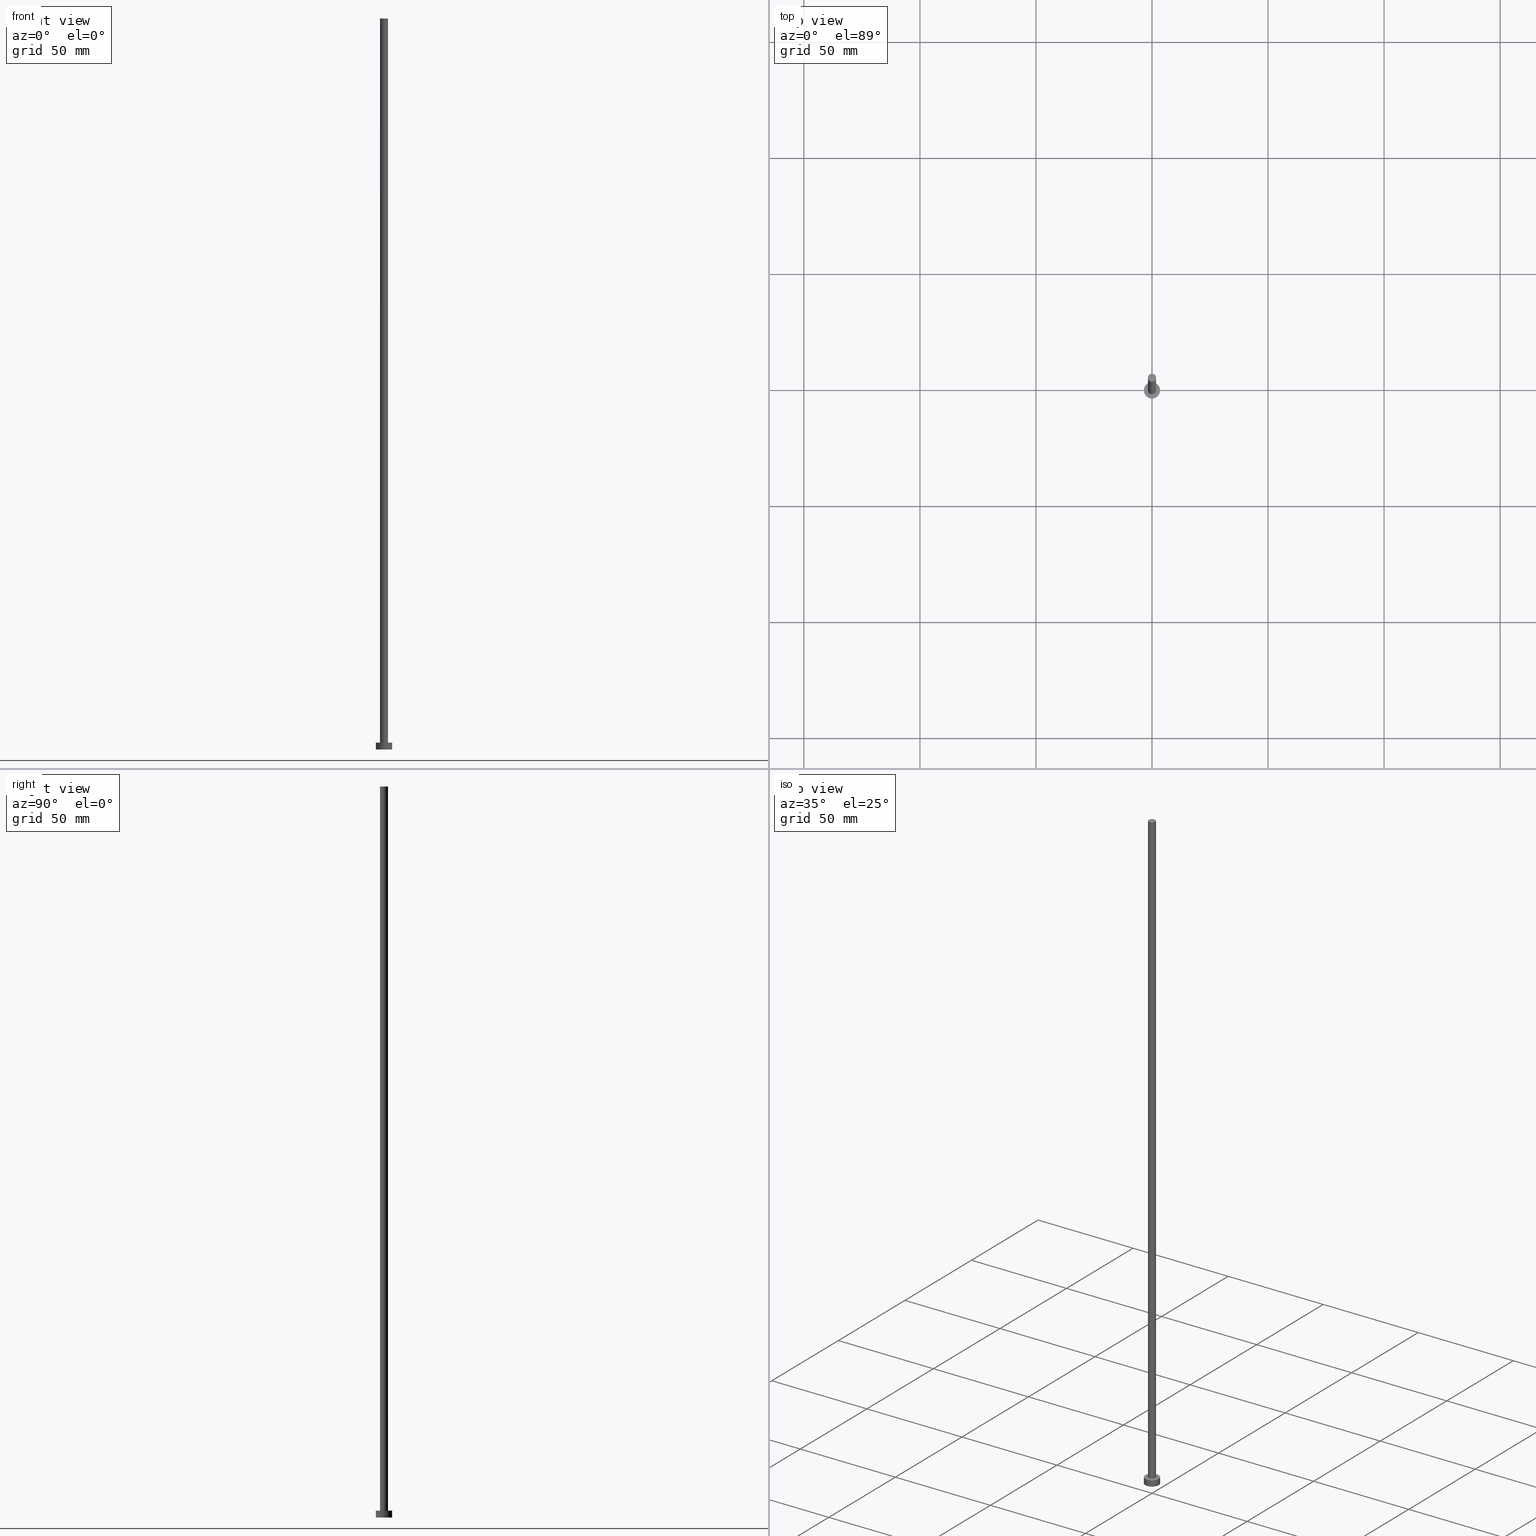
[diagram: canonical four-view strip — front | top / right | iso, engineering-drawing reading convention]
A machine part, canonical four-view strip (front | top / right | iso — engineering-drawing reading convention). The complete STEP part file that produces these views, byte-faithful:
ISO-10303-21;
HEADER;
FILE_DESCRIPTION (( 'STEP AP203' ),
    '1' );
FILE_NAME ('29cc.STEP',
    '2023-02-12T12:42:04',
    ( '' ),
    ( '' ),
    'SwSTEP 2.0',
    'SolidWorks 2019',
    '' );
FILE_SCHEMA (( 'CONFIG_CONTROL_DESIGN' ));
ENDSEC;

DATA;
#1 = ORIENTED_EDGE ( 'NONE', *, *, #112, .F. ) ;
#2 = AXIS2_PLACEMENT_3D ( 'NONE', #130, #226, #88 ) ;
#3 = AXIS2_PLACEMENT_3D ( 'NONE', #16, #223, #99 ) ;
#4 = EDGE_CURVE ( 'NONE', #36, #141, #86, .T. ) ;
#5 = PLANE ( 'NONE',  #2 ) ;
#6 = ADVANCED_FACE ( 'NONE', ( #144 ), #5, .T. ) ;
#7 = ORIENTED_EDGE ( 'NONE', *, *, #255, .T. ) ;
#8 = CARTESIAN_POINT ( 'NONE',  ( 0.000000000000000000, 0.000000000000000000, 3.000000000000000000 ) ) ;
#9 = AXIS2_PLACEMENT_3D ( 'NONE', #31, #217, #235 ) ;
#10 = DIRECTION ( 'NONE',  ( 0.000000000000000000, 0.000000000000000000, 1.000000000000000000 ) ) ;
#11 = APPROVAL_ROLE ( '' ) ;
#12 = COORDINATED_UNIVERSAL_TIME_OFFSET ( 1, 0, .AHEAD. ) ;
#13 = CARTESIAN_POINT ( 'NONE',  ( 3.500000000000000444, 4.286263797015737088E-16, 3.000000000000000000 ) ) ;
#14 = EDGE_CURVE ( 'NONE', #28, #188, #156, .T. ) ;
#15 = PRODUCT_DEFINITION_FORMATION_WITH_SPECIFIED_SOURCE ( 'LIBOVOLN�', '', #187, .NOT_KNOWN. ) ;
#16 = CARTESIAN_POINT ( 'NONE',  ( 0.000000000000000000, 0.000000000000000000, 315.0000000000000000 ) ) ;
#17 = EDGE_LOOP ( 'NONE', ( #195, #51 ) ) ;
#18 = CC_DESIGN_PERSON_AND_ORGANIZATION_ASSIGNMENT ( #172, #162, ( #15 ) ) ;
#19 = CARTESIAN_POINT ( 'NONE',  ( -1.750000000000000000, 0.000000000000000000, 315.0000000000000000 ) ) ;
#20 = CARTESIAN_POINT ( 'NONE',  ( -1.750000000000000000, 0.000000000000000000, 3.000000000000000000 ) ) ;
#21 = ADVANCED_FACE ( 'NONE', ( #236 ), #118, .T. ) ;
#22 = CIRCLE ( 'NONE', #177, 3.500000000000000444 ) ;
#23 = ORIENTED_EDGE ( 'NONE', *, *, #221, .T. ) ;
#24 = FACE_OUTER_BOUND ( 'NONE', #250, .T. ) ;
#25 = APPROVAL ( #191, 'NEUR�EN�' ) ;
#26 = EDGE_LOOP ( 'NONE', ( #201, #46, #61, #153 ) ) ;
#27 = ADVANCED_FACE ( 'NONE', ( #167 ), #186, .T. ) ;
#28 = VERTEX_POINT ( 'NONE', #242 ) ;
#29 = APPLICATION_CONTEXT ( 'configuration controlled 3d designs of mechanical parts and assemblies' ) ;
#30 = VERTEX_POINT ( 'NONE', #243 ) ;
#31 = CARTESIAN_POINT ( 'NONE',  ( 0.000000000000000000, 0.000000000000000000, 0.000000000000000000 ) ) ;
#32 = DIRECTION ( 'NONE',  ( 0.000000000000000000, 0.000000000000000000, 1.000000000000000000 ) ) ;
#33 = DIRECTION ( 'NONE',  ( 0.000000000000000000, 0.000000000000000000, 1.000000000000000000 ) ) ;
#34 = MECHANICAL_CONTEXT ( 'NONE', #29, 'mechanical' ) ;
#35 = ORIENTED_EDGE ( 'NONE', *, *, #255, .F. ) ;
#36 = VERTEX_POINT ( 'NONE', #20 ) ;
#37 = ORIENTED_EDGE ( 'NONE', *, *, #176, .T. ) ;
#38 = CC_DESIGN_DATE_AND_TIME_ASSIGNMENT ( #142, #41, ( #122 ) ) ;
#39 = FACE_BOUND ( 'NONE', #205, .T. ) ;
#40 = CIRCLE ( 'NONE', #129, 3.500000000000000444 ) ;
#41 = DATE_TIME_ROLE ( 'creation_date' ) ;
#42 = CARTESIAN_POINT ( 'NONE',  ( 0.000000000000000000, 0.000000000000000000, 0.000000000000000000 ) ) ;
#43 = DIRECTION ( 'NONE',  ( -1.000000000000000000, 0.000000000000000000, 0.000000000000000000 ) ) ;
#44 = ORIENTED_EDGE ( 'NONE', *, *, #182, .F. ) ;
#45 = AXIS2_PLACEMENT_3D ( 'NONE', #171, #247, #43 ) ;
#46 = ORIENTED_EDGE ( 'NONE', *, *, #176, .F. ) ;
#47 = DIRECTION ( 'NONE',  ( -0.000000000000000000, -0.000000000000000000, -1.000000000000000000 ) ) ;
#48 = LOCAL_TIME ( 13, 42, 4.000000000000000000, #12 ) ;
#49 = ORIENTED_EDGE ( 'NONE', *, *, #59, .T. ) ;
#50 = DIRECTION ( 'NONE',  ( 0.000000000000000000, 0.000000000000000000, 1.000000000000000000 ) ) ;
#51 = ORIENTED_EDGE ( 'NONE', *, *, #112, .T. ) ;
#52 = FACE_OUTER_BOUND ( 'NONE', #228, .T. ) ;
#53 = APPROVAL_ROLE ( '' ) ;
#54 = ORIENTED_EDGE ( 'NONE', *, *, #4, .T. ) ;
#55 = DIRECTION ( 'NONE',  ( 1.000000000000000000, 0.000000000000000000, 0.000000000000000000 ) ) ;
#56 = CALENDAR_DATE ( 2023, 12, 2 ) ;
#57 = CARTESIAN_POINT ( 'NONE',  ( 0.000000000000000000, 0.000000000000000000, 0.000000000000000000 ) ) ;
#58 = PLANE ( 'NONE',  #175 ) ;
#59 = EDGE_CURVE ( 'NONE', #30, #188, #22, .T. ) ;
#60 = CC_DESIGN_APPROVAL ( #25, ( #122 ) ) ;
#61 = ORIENTED_EDGE ( 'NONE', *, *, #14, .T. ) ;
#62 = EDGE_LOOP ( 'NONE', ( #173, #233, #170, #54 ) ) ;
#63 = VECTOR ( 'NONE', #200, 1000.000000000000000 ) ;
#64 = ADVANCED_FACE ( 'NONE', ( #227 ), #212, .F. ) ;
#65 = PERSON_AND_ORGANIZATION ( #127, #193 ) ;
#66 = ORIENTED_EDGE ( 'NONE', *, *, #105, .T. ) ;
#67 = DIRECTION ( 'NONE',  ( -1.000000000000000000, 0.000000000000000000, 0.000000000000000000 ) ) ;
#68 = APPROVAL ( #152, 'NEUR�EN�' ) ;
#69 = CC_DESIGN_PERSON_AND_ORGANIZATION_ASSIGNMENT ( #80, #116, ( #187 ) ) ;
#70 = APPROVAL_DATE_TIME ( #249, #163 ) ;
#71 = DIRECTION ( 'NONE',  ( 1.000000000000000000, 0.000000000000000000, 0.000000000000000000 ) ) ;
#72 = CIRCLE ( 'NONE', #220, 3.500000000000000444 ) ;
#73 = DIRECTION ( 'NONE',  ( 1.000000000000000000, 0.000000000000000000, 0.000000000000000000 ) ) ;
#74 = DIRECTION ( 'NONE',  ( 1.000000000000000000, 0.000000000000000000, 0.000000000000000000 ) ) ;
#75 = CARTESIAN_POINT ( 'NONE',  ( 0.000000000000000000, 0.000000000000000000, 0.000000000000000000 ) ) ;
#76 =( NAMED_UNIT ( * ) PLANE_ANGLE_UNIT ( ) SI_UNIT ( $, .RADIAN. ) );
#77 = VECTOR ( 'NONE', #135, 1000.000000000000000 ) ;
#78 = DATE_AND_TIME ( #151, #98 ) ;
#79 = AXIS2_PLACEMENT_3D ( 'NONE', #133, #198, #55 ) ;
#80 = PERSON_AND_ORGANIZATION ( #127, #193 ) ;
#81 =( GEOMETRIC_REPRESENTATION_CONTEXT ( 3 ) GLOBAL_UNCERTAINTY_ASSIGNED_CONTEXT ( ( #117 ) ) GLOBAL_UNIT_ASSIGNED_CONTEXT ( ( #252, #76, #157 ) ) REPRESENTATION_CONTEXT ( 'NONE', 'WORKASPACE' ) );
#82 = EDGE_CURVE ( 'NONE', #207, #141, #137, .T. ) ;
#83 = CC_DESIGN_SECURITY_CLASSIFICATION ( #165, ( #15 ) ) ;
#84 = EDGE_CURVE ( 'NONE', #238, #207, #190, .T. ) ;
#85 = SECURITY_CLASSIFICATION_LEVEL ( 'unclassified' ) ;
#86 = CIRCLE ( 'NONE', #120, 1.750000000000000000 ) ;
#87 = AXIS2_PLACEMENT_3D ( 'NONE', #57, #251, #211 ) ;
#88 = DIRECTION ( 'NONE',  ( 1.000000000000000000, 0.000000000000000000, -0.000000000000000000 ) ) ;
#89 = DIRECTION ( 'NONE',  ( -0.000000000000000000, -0.000000000000000000, -1.000000000000000000 ) ) ;
#90 = DIRECTION ( 'NONE',  ( -0.000000000000000000, -0.000000000000000000, -1.000000000000000000 ) ) ;
#91 = CC_DESIGN_PERSON_AND_ORGANIZATION_ASSIGNMENT ( #65, #119, ( #122 ) ) ;
#92 = PERSON_AND_ORGANIZATION ( #127, #193 ) ;
#93 = EDGE_LOOP ( 'NONE', ( #37, #7 ) ) ;
#94 = APPROVAL_DATE_TIME ( #78, #25 ) ;
#95 = PERSON_AND_ORGANIZATION_ROLE ( 'classification_officer' ) ;
#96 = DATE_TIME_ROLE ( 'classification_date' ) ;
#97 = COORDINATED_UNIVERSAL_TIME_OFFSET ( 1, 0, .AHEAD. ) ;
#98 = LOCAL_TIME ( 13, 42, 4.000000000000000000, #97 ) ;
#99 = DIRECTION ( 'NONE',  ( 1.000000000000000000, 0.000000000000000000, 0.000000000000000000 ) ) ;
#100 = CC_DESIGN_PERSON_AND_ORGANIZATION_ASSIGNMENT ( #92, #95, ( #165 ) ) ;
#101 = LINE ( 'NONE', #219, #63 ) ;
#102 = APPLICATION_CONTEXT ( 'configuration controlled 3d designs of mechanical parts and assemblies' ) ;
#103 = CYLINDRICAL_SURFACE ( 'NONE', #183, 1.750000000000000000 ) ;
#104 = CIRCLE ( 'NONE', #138, 1.750000000000000000 ) ;
#105 = EDGE_CURVE ( 'NONE', #131, #30, #196, .T. ) ;
#106 = EDGE_CURVE ( 'NONE', #238, #36, #101, .T. ) ;
#107 = VECTOR ( 'NONE', #203, 1000.000000000000000 ) ;
#108 = APPLICATION_PROTOCOL_DEFINITION ( 'international standard', 'config_control_design', 1994, #102 ) ;
#109 = DATE_AND_TIME ( #56, #115 ) ;
#110 = ORIENTED_EDGE ( 'NONE', *, *, #82, .T. ) ;
#111 = APPROVAL_ROLE ( '' ) ;
#112 = EDGE_CURVE ( 'NONE', #207, #238, #253, .T. ) ;
#113 = DIRECTION ( 'NONE',  ( 1.000000000000000000, 0.000000000000000000, 0.000000000000000000 ) ) ;
#114 = PERSON_AND_ORGANIZATION ( #127, #193 ) ;
#115 = LOCAL_TIME ( 13, 42, 4.000000000000000000, #209 ) ;
#116 = PERSON_AND_ORGANIZATION_ROLE ( 'design_owner' ) ;
#117 = UNCERTAINTY_MEASURE_WITH_UNIT (LENGTH_MEASURE( 1.000000000000000082E-05 ), #252, 'distance_accuracy_value', 'NONE');
#118 = CYLINDRICAL_SURFACE ( 'NONE', #180, 3.500000000000000444 ) ;
#119 = PERSON_AND_ORGANIZATION_ROLE ( 'creator' ) ;
#120 = AXIS2_PLACEMENT_3D ( 'NONE', #215, #32, #73 ) ;
#121 = APPROVAL_PERSON_ORGANIZATION ( #114, #68, #11 ) ;
#122 = PRODUCT_DEFINITION ( 'NEZN�M�', '', #15, #234 ) ;
#123 = PERSON_AND_ORGANIZATION_ROLE ( 'design_supplier' ) ;
#124 = ADVANCED_FACE ( 'NONE', ( #39, #202 ), #58, .T. ) ;
#125 = PERSON_AND_ORGANIZATION ( #127, #193 ) ;
#126 = DIRECTION ( 'NONE',  ( 1.000000000000000000, 0.000000000000000000, 0.000000000000000000 ) ) ;
#127 = PERSON ( 'NEUR�EN�', 'NEUR�EN�', 'NEUR�EN�', ('NEUR�EN�'), ('NEUR�EN�'), ('NEUR�EN�') ) ;
#128 = ORIENTED_EDGE ( 'NONE', *, *, #14, .F. ) ;
#129 = AXIS2_PLACEMENT_3D ( 'NONE', #8, #246, #71 ) ;
#130 = CARTESIAN_POINT ( 'NONE',  ( 0.000000000000000000, 0.000000000000000000, 315.0000000000000000 ) ) ;
#131 = VERTEX_POINT ( 'NONE', #240 ) ;
#132 = APPROVAL_PERSON_ORGANIZATION ( #125, #163, #53 ) ;
#133 = CARTESIAN_POINT ( 'NONE',  ( 0.000000000000000000, 0.000000000000000000, 3.000000000000000000 ) ) ;
#134 = APPROVAL_DATE_TIME ( #214, #68 ) ;
#135 = DIRECTION ( 'NONE',  ( -0.000000000000000000, -0.000000000000000000, -1.000000000000000000 ) ) ;
#136 = SHAPE_DEFINITION_REPRESENTATION ( #140, #210 ) ;
#137 = LINE ( 'NONE', #254, #230 ) ;
#138 = AXIS2_PLACEMENT_3D ( 'NONE', #146, #10, #74 ) ;
#139 = ORIENTED_EDGE ( 'NONE', *, *, #4, .F. ) ;
#140 = PRODUCT_DEFINITION_SHAPE ( 'NONE', 'NONE',  #122 ) ;
#141 = VERTEX_POINT ( 'NONE', #166 ) ;
#142 = DATE_AND_TIME ( #237, #241 ) ;
#143 = DIRECTION ( 'NONE',  ( 0.000000000000000000, 0.000000000000000000, 1.000000000000000000 ) ) ;
#144 = FACE_OUTER_BOUND ( 'NONE', #17, .T. ) ;
#145 = CARTESIAN_POINT ( 'NONE',  ( 1.750000000000000000, 2.143131898507868297E-16, 315.0000000000000000 ) ) ;
#146 = CARTESIAN_POINT ( 'NONE',  ( 0.000000000000000000, 0.000000000000000000, 3.000000000000000000 ) ) ;
#147 = ADVANCED_FACE ( 'NONE', ( #24 ), #189, .T. ) ;
#148 = DIRECTION ( 'NONE',  ( 0.000000000000000000, 0.000000000000000000, 1.000000000000000000 ) ) ;
#149 = DIRECTION ( 'NONE',  ( 1.000000000000000000, 0.000000000000000000, 0.000000000000000000 ) ) ;
#150 = COORDINATED_UNIVERSAL_TIME_OFFSET ( 1, 0, .AHEAD. ) ;
#151 = CALENDAR_DATE ( 2023, 12, 2 ) ;
#152 = APPROVAL_STATUS ( 'not_yet_approved' ) ;
#153 = ORIENTED_EDGE ( 'NONE', *, *, #182, .T. ) ;
#154 = CALENDAR_DATE ( 2023, 12, 2 ) ;
#155 = ORIENTED_EDGE ( 'NONE', *, *, #106, .F. ) ;
#156 = LINE ( 'NONE', #194, #77 ) ;
#157 =( NAMED_UNIT ( * ) SI_UNIT ( $, .STERADIAN. ) SOLID_ANGLE_UNIT ( ) );
#158 = CARTESIAN_POINT ( 'NONE',  ( 0.000000000000000000, 0.000000000000000000, 3.000000000000000000 ) ) ;
#159 = COORDINATED_UNIVERSAL_TIME_OFFSET ( 1, 0, .AHEAD. ) ;
#160 = PERSON_AND_ORGANIZATION ( #127, #193 ) ;
#161 = LOCAL_TIME ( 13, 42, 4.000000000000000000, #150 ) ;
#162 = PERSON_AND_ORGANIZATION_ROLE ( 'creator' ) ;
#163 = APPROVAL ( #204, 'NEUR�EN�' ) ;
#164 = CLOSED_SHELL ( 'NONE', ( #239, #147, #21, #124, #64, #27, #6 ) ) ;
#165 = SECURITY_CLASSIFICATION ( '', '', #85 ) ;
#166 = CARTESIAN_POINT ( 'NONE',  ( 1.750000000000000000, 2.143131898507868297E-16, 3.000000000000000000 ) ) ;
#167 = FACE_OUTER_BOUND ( 'NONE', #62, .T. ) ;
#168 = CC_DESIGN_PERSON_AND_ORGANIZATION_ASSIGNMENT ( #160, #123, ( #15 ) ) ;
#169 = CALENDAR_DATE ( 2023, 12, 2 ) ;
#170 = ORIENTED_EDGE ( 'NONE', *, *, #106, .T. ) ;
#171 = CARTESIAN_POINT ( 'NONE',  ( 0.000000000000000000, 0.000000000000000000, 315.0000000000000000 ) ) ;
#172 = PERSON_AND_ORGANIZATION ( #127, #193 ) ;
#173 = ORIENTED_EDGE ( 'NONE', *, *, #82, .F. ) ;
#174 = DIRECTION ( 'NONE',  ( -0.000000000000000000, -0.000000000000000000, -1.000000000000000000 ) ) ;
#175 = AXIS2_PLACEMENT_3D ( 'NONE', #158, #148, #224 ) ;
#176 = EDGE_CURVE ( 'NONE', #28, #131, #40, .T. ) ;
#177 = AXIS2_PLACEMENT_3D ( 'NONE', #75, #50, #149 ) ;
#178 = CIRCLE ( 'NONE', #79, 3.500000000000000444 ) ;
#179 = ORIENTED_EDGE ( 'NONE', *, *, #59, .F. ) ;
#180 = AXIS2_PLACEMENT_3D ( 'NONE', #185, #90, #192 ) ;
#181 = CARTESIAN_POINT ( 'NONE',  ( 0.000000000000000000, 0.000000000000000000, 3.000000000000000000 ) ) ;
#182 = EDGE_CURVE ( 'NONE', #188, #30, #72, .T. ) ;
#183 = AXIS2_PLACEMENT_3D ( 'NONE', #184, #89, #208 ) ;
#184 = CARTESIAN_POINT ( 'NONE',  ( 0.000000000000000000, 0.000000000000000000, 315.0000000000000000 ) ) ;
#185 = CARTESIAN_POINT ( 'NONE',  ( 0.000000000000000000, 0.000000000000000000, 3.000000000000000000 ) ) ;
#186 = CYLINDRICAL_SURFACE ( 'NONE', #45, 1.750000000000000000 ) ;
#187 = PRODUCT ( '29cc', '29cc', '', ( #34 ) ) ;
#188 = VERTEX_POINT ( 'NONE', #206 ) ;
#189 = CYLINDRICAL_SURFACE ( 'NONE', #225, 3.500000000000000444 ) ;
#190 = CIRCLE ( 'NONE', #222, 1.750000000000000000 ) ;
#191 = APPROVAL_STATUS ( 'not_yet_approved' ) ;
#192 = DIRECTION ( 'NONE',  ( -1.000000000000000000, 0.000000000000000000, 0.000000000000000000 ) ) ;
#193 = ORGANIZATION ( 'NEUR�EN�', 'NEUR�EN�', '' ) ;
#194 = CARTESIAN_POINT ( 'NONE',  ( -3.500000000000000444, 0.000000000000000000, 3.000000000000000000 ) ) ;
#195 = ORIENTED_EDGE ( 'NONE', *, *, #84, .T. ) ;
#196 = LINE ( 'NONE', #13, #107 ) ;
#197 = CC_DESIGN_APPROVAL ( #68, ( #165 ) ) ;
#198 = DIRECTION ( 'NONE',  ( 0.000000000000000000, 0.000000000000000000, 1.000000000000000000 ) ) ;
#199 = MANIFOLD_SOLID_BREP ( 'P�idat vysunut�m3', #164 ) ;
#200 = DIRECTION ( 'NONE',  ( -0.000000000000000000, -0.000000000000000000, -1.000000000000000000 ) ) ;
#201 = ORIENTED_EDGE ( 'NONE', *, *, #105, .F. ) ;
#202 = FACE_OUTER_BOUND ( 'NONE', #93, .T. ) ;
#203 = DIRECTION ( 'NONE',  ( -0.000000000000000000, -0.000000000000000000, -1.000000000000000000 ) ) ;
#204 = APPROVAL_STATUS ( 'not_yet_approved' ) ;
#205 = EDGE_LOOP ( 'NONE', ( #139, #231 ) ) ;
#206 = CARTESIAN_POINT ( 'NONE',  ( -3.500000000000000444, 0.000000000000000000, 0.000000000000000000 ) ) ;
#207 = VERTEX_POINT ( 'NONE', #145 ) ;
#208 = DIRECTION ( 'NONE',  ( -1.000000000000000000, 0.000000000000000000, 0.000000000000000000 ) ) ;
#209 = COORDINATED_UNIVERSAL_TIME_OFFSET ( 1, 0, .AHEAD. ) ;
#210 = ADVANCED_BREP_SHAPE_REPRESENTATION ( '29cc', ( #199, #87 ), #81 ) ;
#211 = DIRECTION ( 'NONE',  ( 1.000000000000000000, 0.000000000000000000, 0.000000000000000000 ) ) ;
#212 = PLANE ( 'NONE',  #9 ) ;
#213 = APPROVAL_PERSON_ORGANIZATION ( #248, #25, #111 ) ;
#214 = DATE_AND_TIME ( #154, #48 ) ;
#215 = CARTESIAN_POINT ( 'NONE',  ( 0.000000000000000000, 0.000000000000000000, 3.000000000000000000 ) ) ;
#216 = APPLICATION_PROTOCOL_DEFINITION ( 'international standard', 'config_control_design', 1994, #29 ) ;
#217 = DIRECTION ( 'NONE',  ( 0.000000000000000000, 0.000000000000000000, 1.000000000000000000 ) ) ;
#218 = CC_DESIGN_DATE_AND_TIME_ASSIGNMENT ( #109, #96, ( #165 ) ) ;
#219 = CARTESIAN_POINT ( 'NONE',  ( -1.750000000000000000, 0.000000000000000000, 315.0000000000000000 ) ) ;
#220 = AXIS2_PLACEMENT_3D ( 'NONE', #42, #143, #126 ) ;
#221 = EDGE_CURVE ( 'NONE', #141, #36, #104, .T. ) ;
#222 = AXIS2_PLACEMENT_3D ( 'NONE', #229, #33, #113 ) ;
#223 = DIRECTION ( 'NONE',  ( 0.000000000000000000, 0.000000000000000000, 1.000000000000000000 ) ) ;
#224 = DIRECTION ( 'NONE',  ( 1.000000000000000000, 0.000000000000000000, -0.000000000000000000 ) ) ;
#225 = AXIS2_PLACEMENT_3D ( 'NONE', #181, #47, #67 ) ;
#226 = DIRECTION ( 'NONE',  ( 0.000000000000000000, 0.000000000000000000, 1.000000000000000000 ) ) ;
#227 = FACE_OUTER_BOUND ( 'NONE', #244, .T. ) ;
#228 = EDGE_LOOP ( 'NONE', ( #1, #110, #23, #155 ) ) ;
#229 = CARTESIAN_POINT ( 'NONE',  ( 0.000000000000000000, 0.000000000000000000, 315.0000000000000000 ) ) ;
#230 = VECTOR ( 'NONE', #174, 1000.000000000000000 ) ;
#231 = ORIENTED_EDGE ( 'NONE', *, *, #221, .F. ) ;
#232 = CC_DESIGN_APPROVAL ( #163, ( #15 ) ) ;
#233 = ORIENTED_EDGE ( 'NONE', *, *, #84, .F. ) ;
#234 = DESIGN_CONTEXT ( 'detailed design', #102, 'design' ) ;
#235 = DIRECTION ( 'NONE',  ( 1.000000000000000000, 0.000000000000000000, -0.000000000000000000 ) ) ;
#236 = FACE_OUTER_BOUND ( 'NONE', #26, .T. ) ;
#237 = CALENDAR_DATE ( 2023, 12, 2 ) ;
#238 = VERTEX_POINT ( 'NONE', #19 ) ;
#239 = ADVANCED_FACE ( 'NONE', ( #52 ), #103, .T. ) ;
#240 = CARTESIAN_POINT ( 'NONE',  ( 3.500000000000000444, 4.286263797015737088E-16, 3.000000000000000000 ) ) ;
#241 = LOCAL_TIME ( 13, 42, 4.000000000000000000, #159 ) ;
#242 = CARTESIAN_POINT ( 'NONE',  ( -3.500000000000000444, 0.000000000000000000, 3.000000000000000000 ) ) ;
#243 = CARTESIAN_POINT ( 'NONE',  ( 3.500000000000000444, 4.286263797015737088E-16, 0.000000000000000000 ) ) ;
#244 = EDGE_LOOP ( 'NONE', ( #44, #179 ) ) ;
#245 = PRODUCT_RELATED_PRODUCT_CATEGORY ( 'detail', '', ( #187 ) ) ;
#246 = DIRECTION ( 'NONE',  ( 0.000000000000000000, 0.000000000000000000, 1.000000000000000000 ) ) ;
#247 = DIRECTION ( 'NONE',  ( -0.000000000000000000, -0.000000000000000000, -1.000000000000000000 ) ) ;
#248 = PERSON_AND_ORGANIZATION ( #127, #193 ) ;
#249 = DATE_AND_TIME ( #169, #161 ) ;
#250 = EDGE_LOOP ( 'NONE', ( #35, #66, #49, #128 ) ) ;
#251 = DIRECTION ( 'NONE',  ( 0.000000000000000000, 0.000000000000000000, 1.000000000000000000 ) ) ;
#252 =( LENGTH_UNIT ( ) NAMED_UNIT ( * ) SI_UNIT ( .MILLI., .METRE. ) );
#253 = CIRCLE ( 'NONE', #3, 1.750000000000000000 ) ;
#254 = CARTESIAN_POINT ( 'NONE',  ( 1.750000000000000000, 2.143131898507868297E-16, 315.0000000000000000 ) ) ;
#255 = EDGE_CURVE ( 'NONE', #131, #28, #178, .T. ) ;
ENDSEC;
END-ISO-10303-21;
